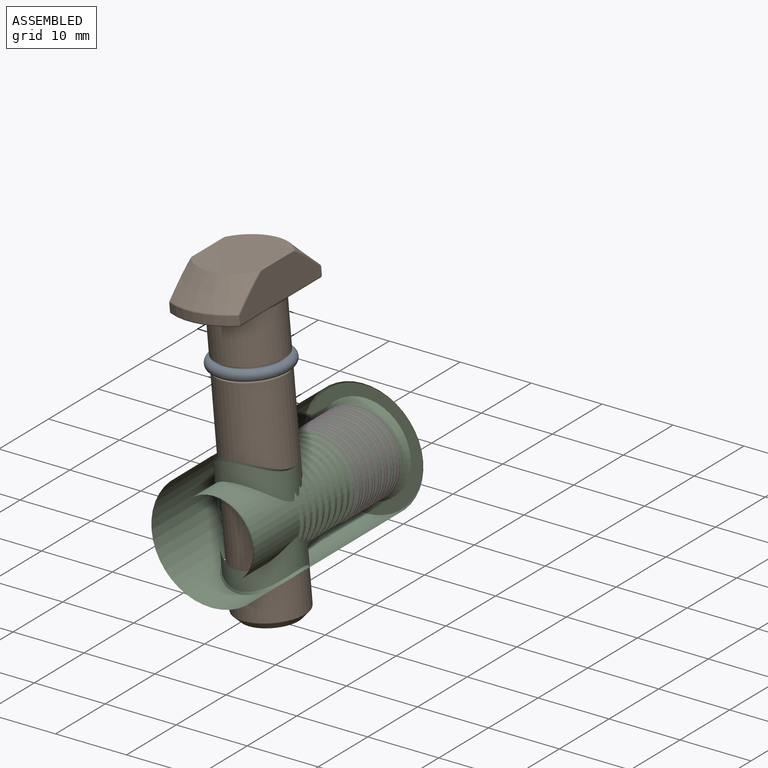
[diagram: assembled view]
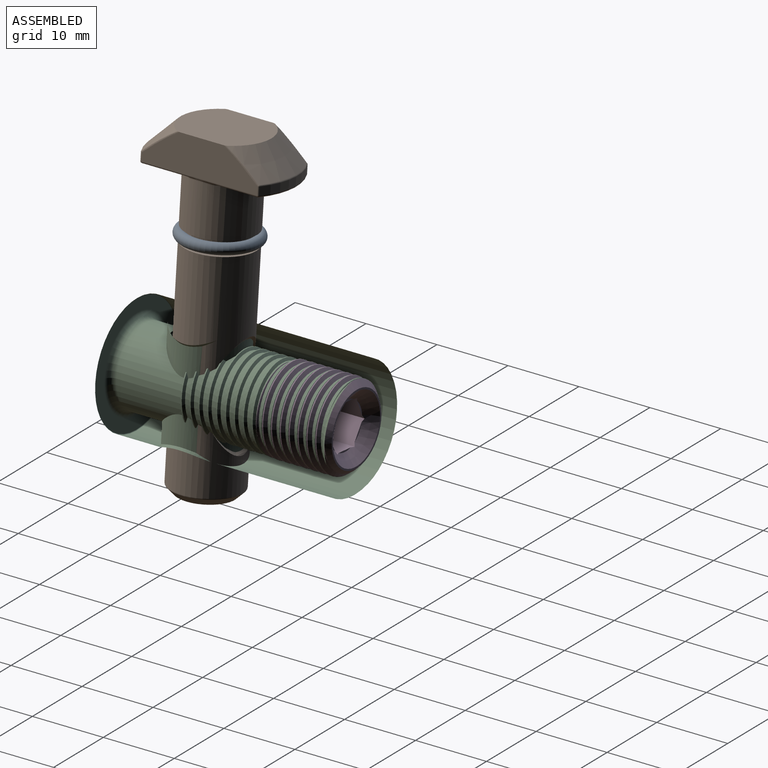
[diagram: assembled view, second angle]
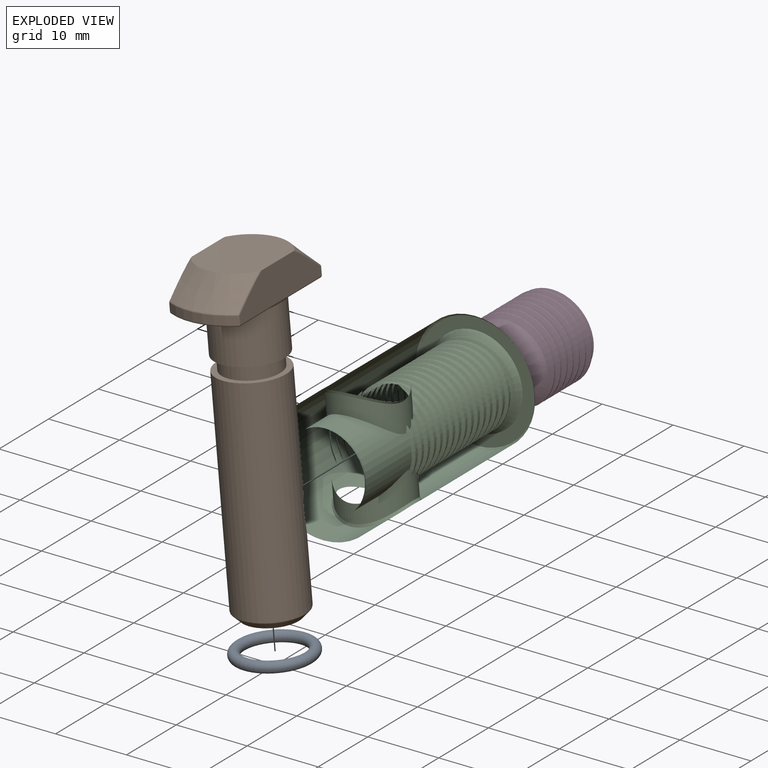
[diagram: exploded view]
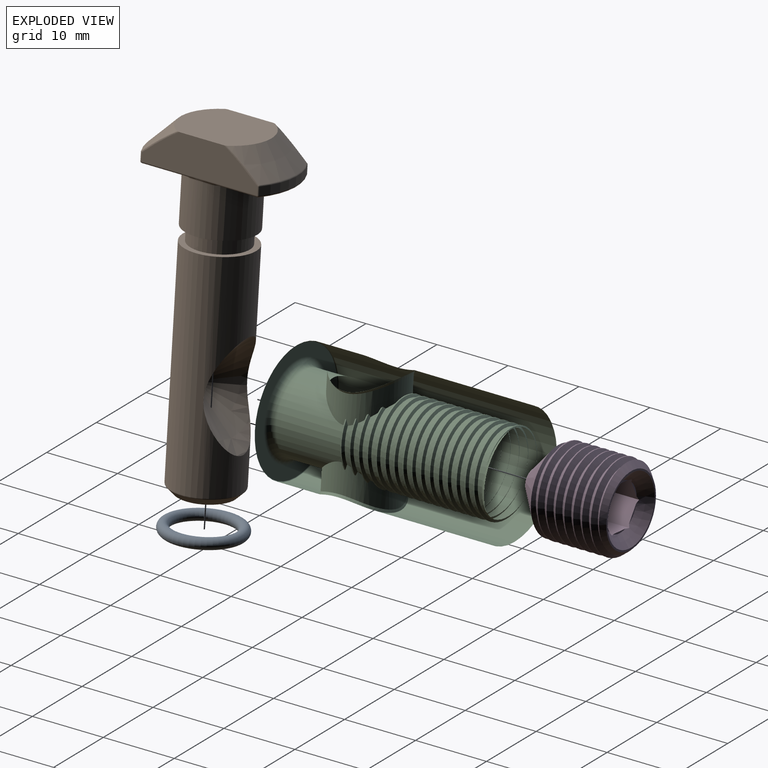
[diagram: exploded view, second angle]
ASSEMBLY  parts=4 mates=3
PART A: 1 faces, bbox 11.9x11.9x1.5 mm
  f0: torus R=4.75mm, axis (0,0,1), area 140.6mm2
PART B: 53 faces, bbox 21x15.5x45.4 mm
  f0: torus R=4.62mm, axis (0,0,-1), area 4.7mm2, adj f5,f6
  f1: cone r=0.5mm half-angle=45deg, axis (1,0,0), area 144.2mm2, adj f6,f52
  f2: torus R=5.07mm, axis (0,0,1), area 4.6mm2, adj f10,f12,f45,f48
  f3: torus R=9.42mm, axis (0,0,1), area 3.9mm2, adj f8,f12,f38,f42
  f4: torus R=9.42mm, axis (0,0,-1), area 2mm2, adj f9,f16,f22,f30
  f5: cone r=3.82mm half-angle=45deg, axis (0,0,1), area 35.9mm2, adj f0,f20
  f6: cylinder r=4.82mm len=29.92mm, axis (0,0,1), area 785mm2, adj f0,f1,f19
  f7: cylinder r=4mm len=8mm, axis (0,0,1), area 50.3mm2, adj f18,f19
  f8: cylinder r=9.67mm len=9.65mm, axis (0,0,1), area 11.6mm2, adj f3,f32,f33,f40
  f9: cone r=6mm half-angle=44.8deg, axis (0,0,-1), area 57mm2, adj f4,f14,f21,f26
  f10: cylinder r=4.82mm len=9.64mm, axis (0,0,1), area 204.8mm2, adj f2,f18,f45,f46,f47,f48,f49,f50
  f11: plane 9.4x7.52mm, normal (0,0,-1), area 45.3mm2, adj f24,f35,f41,f49
  f12: plane 9.4x7.52mm, normal (0,0,-1), area 45.3mm2, adj f2,f3,f34,f44
  f13: plane 16.33x4.98mm, normal (0,1,0), area 63mm2, adj f14,f21,f23,f24,f25,f28,f33,f34
  f14: plane 12.03x9.93mm, normal (0,0,1), area 103.4mm2, adj f9,f13,f15,f17,f21,f23,f26,f31
  f15: cone r=6mm half-angle=44.8deg, axis (0,0,-1), area 57mm2, adj f14,f23,f31,f32
  f16: cylinder r=9.67mm len=9.65mm, axis (0,0,1), area 11.6mm2, adj f4,f25,f35,f36
  f17: plane 16.33x4.98mm, normal (0,-1,0), area 63mm2, adj f14,f26,f31,f36,f40,f41,f43,f44
  f18: plane 9.64x9.64mm, normal (0,0,-1), area 22.7mm2, adj f7,f10
  f19: plane 9.64x9.64mm, normal (0,0,1), area 22.7mm2, adj f6,f7
  f20: plane 7.64x7.64mm, normal (0,0,-1), area 45.8mm2, adj f5
  f21: bspline ~5.19x3.98mm, area 1.7mm2, adj f9,f13,f14,f22
  f22: sphere r=0.25mm, area 0mm2, adj f4,f21,f25
  f23: bspline ~5.22x4mm, area 1.7mm2, adj f13,f14,f15,f27
  f24: cylinder r=0.25mm len=7.1mm, axis (-1,0,0), area 2.7mm2, adj f11,f13,f28,f29,f51
  f25: cylinder r=0.25mm len=1.15mm, axis (0,0,1), area 0.3mm2, adj f13,f16,f22,f29
  f26: bspline ~5.22x4mm, area 1.7mm2, adj f9,f14,f17,f30
  f27: sphere r=0.25mm, area 0mm2, adj f23,f32,f33
  f28: bspline ~2.14x0.22mm, area 0.4mm2, adj f13,f24,f34,f50
  f29: sphere r=0.25mm, area 0.1mm2, adj f24,f25,f35
  f30: sphere r=0.25mm, area 0mm2, adj f4,f26,f36
  f31: bspline ~5.19x3.98mm, area 1.7mm2, adj f14,f15,f17,f37
  f32: torus R=9.42mm, axis (0,0,-1), area 2mm2, adj f8,f15,f27,f37
  f33: cylinder r=0.25mm len=1.15mm, axis (0,0,1), area 0.3mm2, adj f8,f13,f27,f38
  f34: cylinder r=0.25mm len=7.1mm, axis (-1,0,0), area 2.7mm2, adj f12,f13,f28,f38,f48
  f35: torus R=9.42mm, axis (0,0,1), area 3.9mm2, adj f11,f16,f29,f39
  f36: cylinder r=0.25mm len=1.15mm, axis (0,0,1), area 0.3mm2, adj f16,f17,f30,f39
  f37: sphere r=0.25mm, area 0mm2, adj f31,f32,f40
  f38: sphere r=0.25mm, area 0.1mm2, adj f3,f33,f34
  f39: sphere r=0.25mm, area 0.1mm2, adj f35,f36,f41
  f40: cylinder r=0.25mm len=1.15mm, axis (0,0,1), area 0.3mm2, adj f8,f17,f37,f42
  f41: cylinder r=0.25mm len=7.1mm, axis (1,0,0), area 2.7mm2, adj f11,f17,f39,f43,f47
  f42: sphere r=0.25mm, area 0.1mm2, adj f3,f40,f44
  f43: bspline ~2.14x0.22mm, area 0.4mm2, adj f17,f41,f44,f46
  f44: cylinder r=0.25mm len=7.1mm, axis (1,0,0), area 2.7mm2, adj f12,f17,f42,f43,f45
  f45: bspline ~0.89x0.36mm, area 0.3mm2, adj f2,f10,f44,f46
  f46: bspline ~2.14x0.23mm, area 0.4mm2, adj f10,f43,f45,f47
  f47: bspline ~0.89x0.36mm, area 0.3mm2, adj f10,f41,f46,f49
  f48: bspline ~0.89x0.36mm, area 0.3mm2, adj f2,f10,f34,f50
  f49: torus R=5.07mm, axis (0,0,1), area 4.6mm2, adj f10,f11,f47,f51
  f50: bspline ~2.14x0.23mm, area 0.4mm2, adj f10,f28,f48,f51
  f51: bspline ~0.89x0.36mm, area 0.3mm2, adj f10,f24,f49,f50
  f52: plane 1x1mm, normal (1,0,0), area 0.8mm2, adj f1
PART C: 49 faces, bbox 18.2x31x18.2 mm
  f0: bspline ~10.61x10.16mm, area 12.8mm2, adj f12,f14
  f1: bspline ~10.61x10.16mm, area 12.8mm2, adj f12,f13
  f2: torus R=6.5mm, axis (0,1,0), area 57.9mm2, adj f15,f25
  f3: torus R=8.33mm, axis (0,1,0), area 8.3mm2, adj f12,f25
  f4: cone r=8.18mm half-angle=45deg, axis (0,-1,0), area 18.4mm2, adj f12,f24
  f5: cone r=5.5mm half-angle=45deg, axis (0,1,0), area 47.6mm2, adj f6,f7,f19,f24,f38,f39
  f6: cone r=5.5mm half-angle=45deg, axis (0,1,0), area 0.4mm2, adj f5,f19,f39
  f7: cylinder r=5.86mm len=15.93mm, axis (0,-1,0), area 73mm2, adj f5,f13,f14,f37,f38,f39
  f8: cylinder r=5.86mm len=6.2mm, axis (0,-1,0), area 1mm2, adj f13,f14,f32,f33
  f9: cylinder r=5.86mm len=7.02mm, axis (0,-1,0), area 1.2mm2, adj f13,f14,f30,f31
  f10: cylinder r=5.86mm len=8.52mm, axis (0,-1,0), area 1.5mm2, adj f13,f14,f28,f29
  f11: cylinder r=5.86mm len=10.43mm, axis (0,-1,0), area 2mm2, adj f13,f14,f26,f27
  f12: cylinder r=8.43mm len=30.65mm, axis (0,-1,0), area 1622.5mm2, adj f0,f1,f3,f4
  f13: cylinder r=5mm len=10mm, axis (1,0,0), area 96.7mm2, adj f1,f7,f8,f9,f10,f11,f15,f16
  f14: cylinder r=5mm len=10mm, axis (1,0,0), area 95.2mm2, adj f0,f7,f8,f9,f10,f11,f15,f16
  f15: cylinder r=5.5mm len=11mm, axis (0,-1,0), area 216.9mm2, adj f2,f13,f14,f32,f48
  f16: cylinder r=5.5mm len=5.31mm, axis (0,-1,0), area 3.5mm2, adj f13,f14,f30,f33
  f17: cylinder r=5.5mm len=6.92mm, axis (0,-1,0), area 4.6mm2, adj f13,f14,f28,f31
  f18: cylinder r=5.5mm len=8.96mm, axis (0,-1,0), area 6.5mm2, adj f13,f14,f26,f29
  f19: cylinder r=5.5mm len=15.8mm, axis (0,-1,0), area 288mm2, adj f5,f6,f13,f14,f27,f38,f39
  f20: cylinder r=5.5mm len=10.07mm, axis (0,-1,0), area 7.8mm2, adj f13,f14,f36,f37
  f21: cylinder r=5.5mm len=7.9mm, axis (0,-1,0), area 5.5mm2, adj f13,f14,f34,f42
  f22: cylinder r=5.5mm len=6.04mm, axis (0,-1,0), area 4mm2, adj f13,f14,f40,f45
  f23: cylinder r=5.5mm len=4.8mm, axis (0,-1,0), area 3.2mm2, adj f13,f14,f43,f46
  f24: plane 16.35x16.35mm, normal (0,1,0), area 77.2mm2, adj f4,f5
  f25: plane 16.65x16.65mm, normal (0,-1,0), area 85mm2, adj f2,f3
  f26: bspline ~11.22x4.61mm, area 4.8mm2, adj f11,f13,f14,f18
  f27: bspline ~10.64x4.05mm, area 5.4mm2, adj f11,f13,f14,f19
  f28: bspline ~8.31x2.08mm, area 3.5mm2, adj f10,f13,f14,f17
  f29: bspline ~9.78x2.99mm, area 3.8mm2, adj f10,f13,f14,f18
  f30: bspline ~6.87x1.44mm, area 2.7mm2, adj f9,f13,f14,f16
  f31: bspline ~8.2x2mm, area 2.9mm2, adj f9,f13,f14,f17
  f32: bspline ~7.3x1.59mm, area 2.4mm2, adj f8,f13,f14,f15
  f33: bspline ~7.34x1.61mm, area 2.4mm2, adj f8,f13,f14,f16
  f34: bspline ~10.43x3.56mm, area 4.1mm2, adj f13,f14,f21,f35
  f35: cylinder r=5.86mm len=9.44mm, axis (0,-1,0), area 1.7mm2, adj f13,f14,f34,f36
  f36: bspline ~9.48x2.84mm, area 4.5mm2, adj f13,f14,f20,f35
  f37: bspline ~11.23x5.31mm, area 6mm2, adj f7,f13,f14,f20
  f38: bspline ~16.17x11.73mm, area 195.1mm2, adj f5,f7,f13,f19
  f39: bspline ~15.7x11.73mm, area 192.4mm2, adj f5,f6,f7,f14,f19
  f40: bspline ~7.52x1.71mm, area 3.1mm2, adj f13,f14,f22,f41
  f41: cylinder r=5.86mm len=7.71mm, axis (0,-1,0), area 1.3mm2, adj f13,f14,f40,f42
  f42: bspline ~7.71x1.79mm, area 3.3mm2, adj f13,f14,f21,f41
  f43: bspline ~6.41x1.27mm, area 2.5mm2, adj f13,f14,f23,f44
  f44: cylinder r=5.86mm len=6.5mm, axis (0,-1,0), area 1.1mm2, adj f13,f14,f43,f45
  f45: bspline ~7.67x1.76mm, area 2.6mm2, adj f13,f14,f22,f44
  f46: bspline ~7.28x1.58mm, area 2.4mm2, adj f13,f14,f23,f47
  f47: cylinder r=5.86mm len=6.17mm, axis (0,-1,0), area 1mm2, adj f13,f14,f46,f48
  f48: bspline ~7.3x1.6mm, area 2.4mm2, adj f13,f14,f15,f47
PART D: 25 faces, bbox 12.2x14.2x12.2 mm
  f0: cone r=4.75mm half-angle=45deg, axis (0,1,0), area 52.5mm2, adj f5,f6,f7,f8,f9,f10,f17,f18
  f1: cone r=6mm half-angle=45deg, axis (0,-1,0), area 28.6mm2, adj f3,f4,f10,f11,f12
  f2: cone r=1.5mm half-angle=48.4deg, axis (0,1,0), area 128.1mm2, adj f4,f12,f13,f14,f15,f16
  f3: cylinder r=5.23mm len=10.47mm, axis (0,-1,0), area 55.2mm2, adj f1,f11,f12,f15
  f4: cylinder r=6mm len=12mm, axis (0,-1,0), area 42.1mm2, adj f1,f2,f11,f12,f14
  f5: plane 2.17x1.25mm, normal (0,1,0), area 0.4mm2, adj f0,f18
  f6: plane 2.5x0.25mm, normal (0,1,0), area 0.4mm2, adj f0,f19
  f7: plane 2.17x1.25mm, normal (0,1,0), area 0.4mm2, adj f0,f20
  f8: plane 2.17x1.25mm, normal (0,1,0), area 0.4mm2, adj f0,f21
  f9: plane 2.5x0.25mm, normal (0,1,0), area 0.4mm2, adj f0,f22
  f10: plane 10x10mm, normal (0,1,0), area 7.7mm2, adj f0,f1
  f11: bspline ~12.15x12.15mm, area 236mm2, adj f1,f3,f4,f14
  f12: bspline ~12.15x12.15mm, area 240mm2, adj f1,f2,f3,f4,f16
  f13: plane 3x3mm, normal (0,-1,0), area 7.1mm2, adj f2
  f14: plane 2.2x0.83mm, normal (-0.5,-0.87,0), area 1.5mm2, adj f2,f4,f11,f15
  f15: plane 2.17x0.24mm, normal (-1,0,0), area 0.4mm2, adj f2,f3,f14,f16
  f16: plane 1.45x0.16mm, normal (-0.5,0.87,0), area 0.1mm2, adj f2,f12,f15
  f17: plane 2.17x1.25mm, normal (0,1,0), area 0.4mm2, adj f0,f23
  f18: plane 6.74x3.03mm, normal (-0.87,0,-0.5), area 22.6mm2, adj f0,f5,f19,f23,f24
  f19: plane 6.74x3.49mm, normal (0,0,-1), area 22.6mm2, adj f0,f6,f18,f20,f24
  f20: plane 6.74x3.03mm, normal (0.87,0,-0.5), area 22.6mm2, adj f0,f7,f19,f21,f24
  f21: plane 6.74x3.03mm, normal (0.87,0,0.5), area 22.6mm2, adj f0,f8,f20,f22,f24
  f22: plane 6.74x3.49mm, normal (0,0,1), area 22.6mm2, adj f0,f9,f21,f23,f24
  f23: plane 6.74x3.03mm, normal (-0.87,0,0.5), area 22.6mm2, adj f0,f17,f18,f22,f24
  f24: plane 6.93x6mm, normal (0,1,0), area 31.2mm2, adj f18,f19,f20,f21,f22,f23
PLACE A rot(axis=(-0.05,-0.05,1),90.1deg) t=(-14.18,39.35,83.8)mm
PLACE B rot(axis=(-0.05,-0.05,1),90.1deg) t=(-14.18,39.35,83.8)mm
PLACE C rot(axis=(0,-1,0),95.2deg) t=(-11.28,28.79,51.93)mm
PLACE D rot(axis=(0,-1,0),5.2deg) t=(-11.28,45.89,51.93)mm
MATE fastened A.f0 <-> B.f0  axis (-0.09,0,1) through (-12.98,39.35,70.66)mm
MATE fastened C.f2 <-> D.f0  axis (0,1,0) through (-11.28,59.79,51.93)mm
MATE fastened B.f1 <-> C.f2  axis (0,1,0) through (-11.28,44.22,51.93)mm
